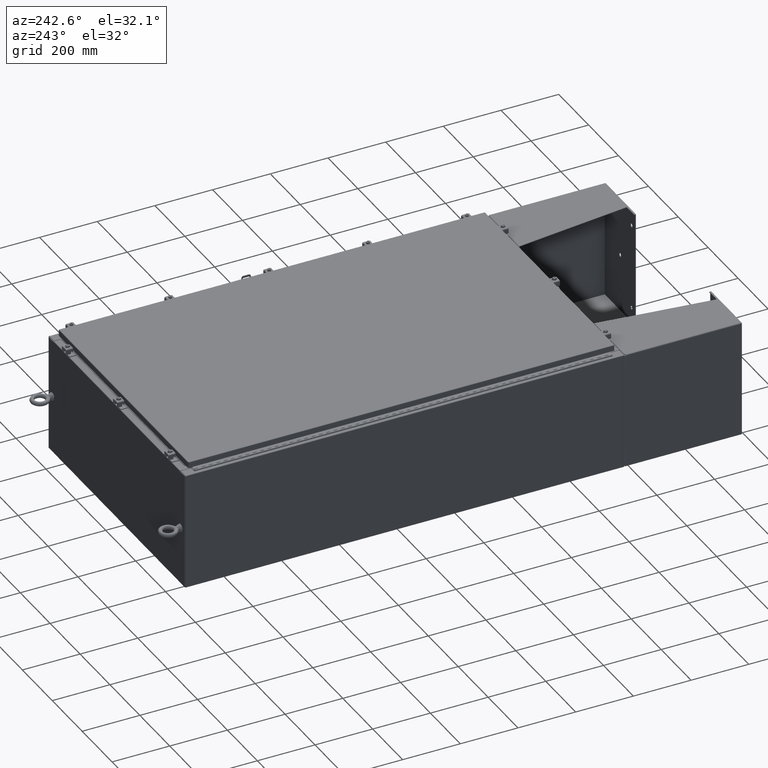
[diagram: clean part render]
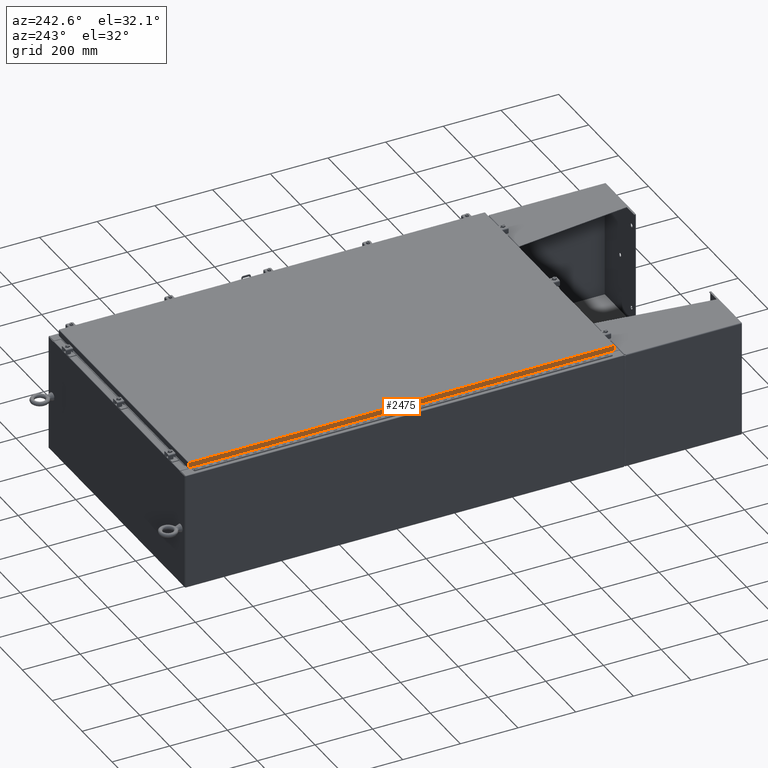
[diagram: same view with one face highlighted and labeled with its STEP entity id]
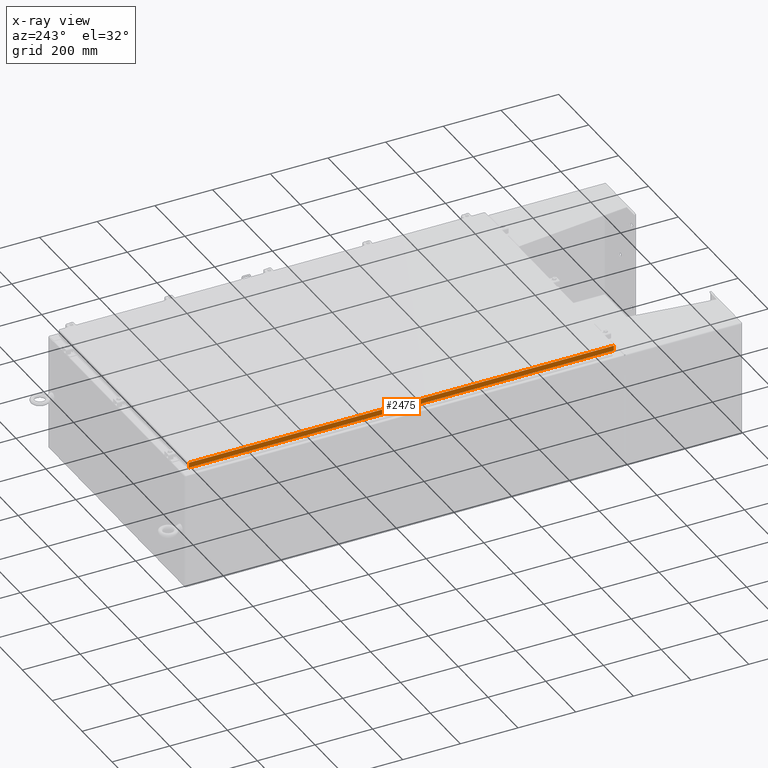
[diagram: x-ray of the same camera — body ghosted, the highlighted face saturated]
A machine part, auxiliary view. The second image highlights one B-rep face of the part: STEP entity #2475.
The next image is the same camera in x-ray: the body ghosted, the highlighted face saturated — about 0% of this face is hidden behind the body in this view.
In plain terms, the highlighted planar face has unit normal (1, -0, -0).
Its self-contained STEP definition (entity closure, byte-faithful):
#568 = DIRECTION ( 'NONE',  ( -3.034122441942816100E-015, 6.982962677686265900E-015, -1.000000000000000000 ) ) ;
#2475 = ADVANCED_FACE ( 'NONE', ( #6166 ), #53088, .F. ) ;
#3100 = EDGE_LOOP ( 'NONE', ( #65661, #45677, #53125, #38856 ) ) ;
#3350 = DIRECTION ( 'NONE',  ( -3.034122441942816500E-015, 0.0000000000000000000, -1.000000000000000000 ) ) ;
#6166 = FACE_OUTER_BOUND ( 'NONE', #3100, .T. ) ;
#6568 = CARTESIAN_POINT ( 'NONE',  ( -17.07799999999999600, 29.00515786437626500, -0.7949999999999926000 ) ) ;
#7298 = VECTOR ( 'NONE', #59213, 39.37007874015748100 ) ;
#9687 = VERTEX_POINT ( 'NONE', #58606 ) ;
#12632 = VERTEX_POINT ( 'NONE', #67392 ) ;
#13669 = EDGE_CURVE ( 'NONE', #12632, #9687, #51260, .T. ) ;
#15447 = VECTOR ( 'NONE', #26514, 39.37007874015748100 ) ;
#17069 = LINE ( 'NONE', #42087, #15447 ) ;
#21315 = AXIS2_PLACEMENT_3D ( 'NONE', #26277, #61887, #3350 ) ;
#21481 = CARTESIAN_POINT ( 'NONE',  ( -17.07799999999999600, 29.00515786437626500, -0.08769999999999567000 ) ) ;
#24946 = VECTOR ( 'NONE', #568, 39.37007874015748100 ) ;
#25479 = VERTEX_POINT ( 'NONE', #21481 ) ;
#26277 = CARTESIAN_POINT ( 'NONE',  ( -17.07799999999999600, 1.282862446849468500E-015, 5.207755671951099000E-014 ) ) ;
#26514 = DIRECTION ( 'NONE',  ( -7.511783855542057500E-017, -1.000000000000000000, -7.511783855542072300E-017 ) ) ;
#27723 = CARTESIAN_POINT ( 'NONE',  ( -17.07800000000000300, -29.09400000000000100, -0.7949999999999997100 ) ) ;
#33311 = LINE ( 'NONE', #27723, #7298 ) ;
#35507 = VECTOR ( 'NONE', #44489, 39.37007874015748100 ) ;
#37033 = CARTESIAN_POINT ( 'NONE',  ( -17.07799999999999600, 29.00515786437626500, 2.546194915468487600E-013 ) ) ;
#37789 = CARTESIAN_POINT ( 'NONE',  ( -17.07799999999999900, -29.00515786437626500, -0.07469999999999976700 ) ) ;
#38856 = ORIENTED_EDGE ( 'NONE', *, *, #13669, .F. ) ;
#40448 = EDGE_CURVE ( 'NONE', #25479, #12632, #17069, .T. ) ;
#41759 = EDGE_CURVE ( 'NONE', #25479, #54807, #52911, .T. ) ;
#42087 = CARTESIAN_POINT ( 'NONE',  ( -17.07799999999999900, -29.09400000000000100, -0.08770000000000004200 ) ) ;
#44489 = DIRECTION ( 'NONE',  ( -3.034122441942816100E-015, 6.982962677686265900E-015, -1.000000000000000000 ) ) ;
#45677 = ORIENTED_EDGE ( 'NONE', *, *, #41759, .T. ) ;
#48411 = EDGE_CURVE ( 'NONE', #9687, #54807, #33311, .T. ) ;
#51260 = LINE ( 'NONE', #37789, #35507 ) ;
#52911 = LINE ( 'NONE', #37033, #24946 ) ;
#53088 = PLANE ( 'NONE',  #21315 ) ;
#53125 = ORIENTED_EDGE ( 'NONE', *, *, #48411, .F. ) ;
#54807 = VERTEX_POINT ( 'NONE', #6568 ) ;
#58606 = CARTESIAN_POINT ( 'NONE',  ( -17.07800000000000300, -29.00515786437626200, -0.7949999999999996000 ) ) ;
#59213 = DIRECTION ( 'NONE',  ( 7.511783855542072300E-017, 1.000000000000000000, 1.220664876525586700E-016 ) ) ;
#61887 = DIRECTION ( 'NONE',  ( 1.000000000000000000, -7.511783855542035400E-017, -3.034122441942816500E-015 ) ) ;
#65661 = ORIENTED_EDGE ( 'NONE', *, *, #40448, .F. ) ;
#67392 = CARTESIAN_POINT ( 'NONE',  ( -17.07799999999999900, -29.00515786437626500, -0.08769999999999787700 ) ) ;